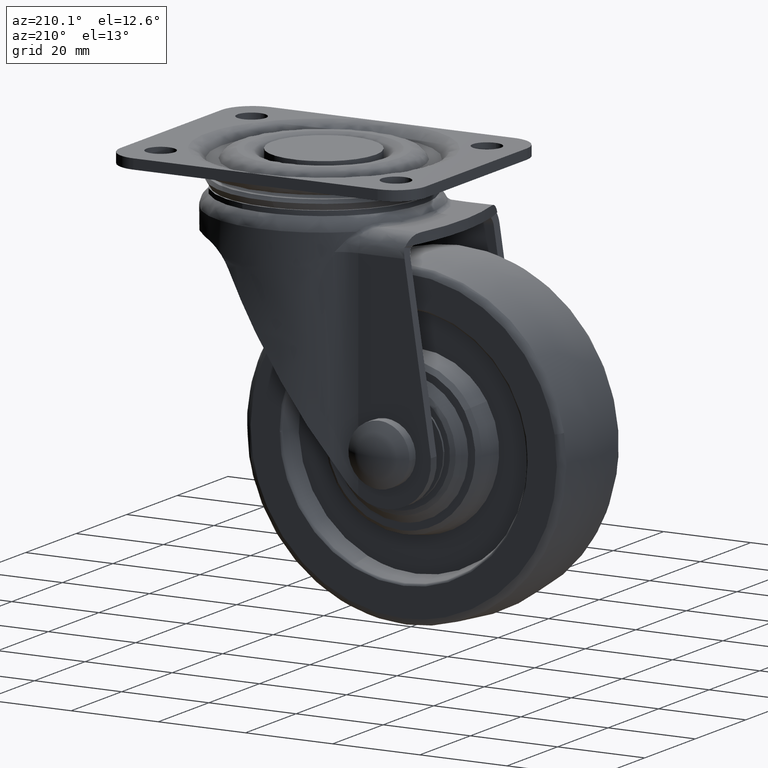
[diagram: clean part render]
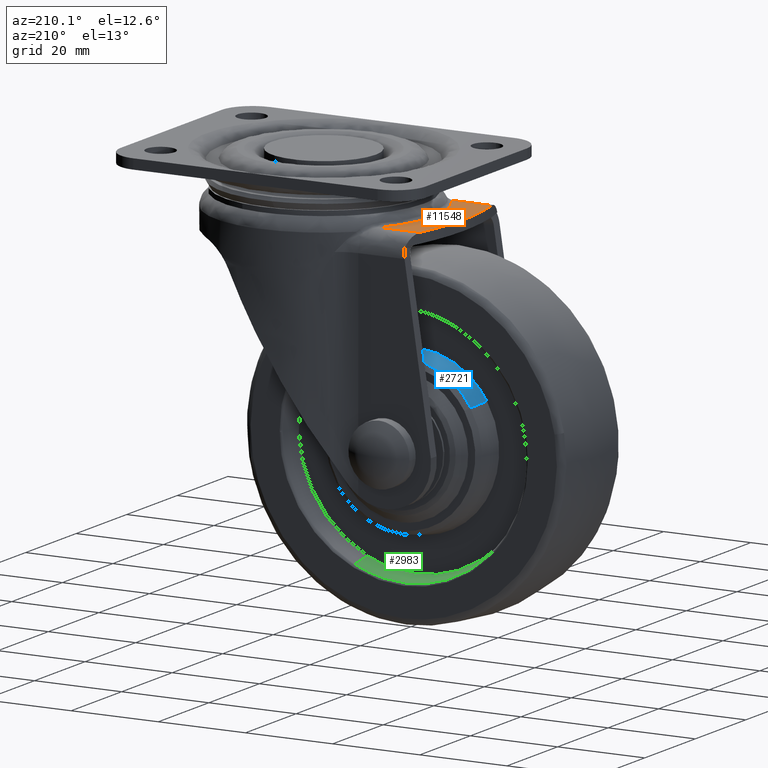
[diagram: same view with three faces highlighted in distinct colors, each labeled with its STEP entity id]
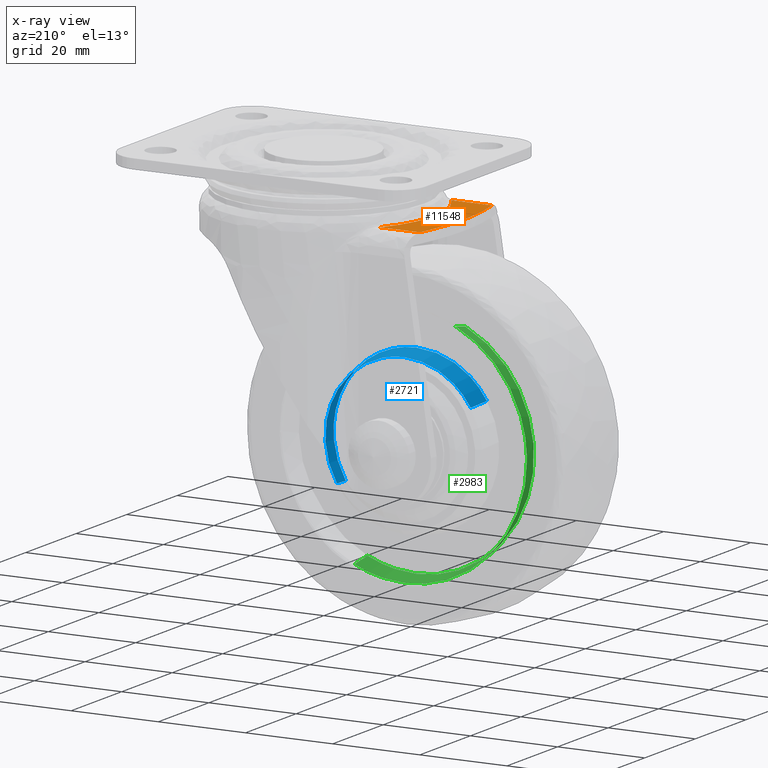
[diagram: x-ray of the same camera — body ghosted, the three highlighted faces saturated]
A machine part, auxiliary view with three faces highlighted in distinct colors.
The next image is the same camera in x-ray (body ghosted, the three faces saturated) — at least one of them is partly hidden behind the body in this view.
Their STEP definitions:

[orange] entity #11548 — the highlighted face is a freeform B-spline surface patch.
#11037=CARTESIAN_POINT('',(-21.084635228655848,14.198499999999999,-11.0));
#11038=VERTEX_POINT('',#11037);
#11039=CARTESIAN_POINT('',(-30.347037945952451,14.198499999999999,-11.0));
#11040=VERTEX_POINT('',#11039);
#11041=CARTESIAN_POINT('',(-21.084635228655848,14.198499999999999,-11.0));
#11042=CARTESIAN_POINT('',(-30.347037945952451,14.198499999999999,-11.0));
#11043=QUASI_UNIFORM_CURVE('',1,(#11041,#11042),.UNSPECIFIED.,.F.,.U.);
#11044=EDGE_CURVE('',#11038,#11040,#11043,.T.);
#11329=CARTESIAN_POINT('',(-30.347037945952451,-14.198499999999999,-11.0));
#11330=VERTEX_POINT('',#11329);
#11356=CARTESIAN_POINT('',(-30.347037945952430,14.198499999999990,-11.0));
#11357=CARTESIAN_POINT('',(-33.698383403574589,1.561251E-014,-10.999999999999996));
#11358=CARTESIAN_POINT('',(-30.347037945952430,-14.198499999999971,-11.0));
#11366=(BOUNDED_CURVE()B_SPLINE_CURVE(2,(#11356,#11357,#11358),.UNSPECIFIED.,.F.,.U.)CURVE()GEOMETRIC_REPRESENTATION_ITEM()QUASI_UNIFORM_CURVE()RATIONAL_B_SPLINE_CURVE((1.0,0.973256127308225,1.0))REPRESENTATION_ITEM(''));
#11367=EDGE_CURVE('',#11040,#11330,#11366,.T.);
#11492=CARTESIAN_POINT('',(-32.545222449172549,-15.616930094961100,-11.0));
#11493=CARTESIAN_POINT('',(-20.539412486710258,-15.616930094961100,-11.0));
#11494=CARTESIAN_POINT('',(-32.545222449172549,15.616930856628001,-11.0));
#11495=CARTESIAN_POINT('',(-20.539412486710258,15.616930856628001,-11.0));
#11496=B_SPLINE_SURFACE_WITH_KNOTS('',1,1,((#11492,#11494),(#11493,#11495)),.UNSPECIFIED.,.F.,.F.,.U.,(2,2),(2,2),(0.0,12.005809962462290),(0.0,31.233860951589101),.UNSPECIFIED.);
#11497=CARTESIAN_POINT('',(-21.084635228655699,-14.198499999999999,-11.0));
#11498=VERTEX_POINT('',#11497);
#11499=CARTESIAN_POINT('',(-30.347037945952451,-14.198499999999999,-11.0));
#11500=CARTESIAN_POINT('',(-21.084635228655699,-14.198499999999999,-11.0));
#11501=QUASI_UNIFORM_CURVE('',1,(#11499,#11500),.UNSPECIFIED.,.F.,.U.);
#11502=EDGE_CURVE('',#11330,#11498,#11501,.T.);
#11503=ORIENTED_EDGE('',*,*,#11502,.T.);
#11504=CARTESIAN_POINT('',(-21.084635228655699,-14.198499999999999,-11.0));
#11505=CARTESIAN_POINT('',(-21.438252810645690,-13.673382751285031,-11.0));
#11506=CARTESIAN_POINT('',(-21.770036131299861,-13.138410769598959,-11.0));
#11507=CARTESIAN_POINT('',(-22.391204039224402,-12.049330450324350,-11.0));
#11508=CARTESIAN_POINT('',(-22.680586110362519,-11.495220977097899,-11.0));
#11509=CARTESIAN_POINT('',(-23.485932093696729,-9.804548136307842,-11.0));
#11510=CARTESIAN_POINT('',(-23.939442487939051,-8.639796833597060,-11.0));
#11511=CARTESIAN_POINT('',(-24.399601849090072,-7.135686523729651,-11.0));
#11512=CARTESIAN_POINT('',(-24.486269743173601,-6.832443469743497,-11.0));
#11513=CARTESIAN_POINT('',(-24.608092674521021,-6.373887398101347,-11.0));
#11514=CARTESIAN_POINT('',(-24.647304255475479,-6.220529213231441,-11.0));
#11515=CARTESIAN_POINT('',(-24.722681191343089,-5.913851045889221,-11.0));
#11516=CARTESIAN_POINT('',(-24.758886364013840,-5.760383185484415,-11.0));
#11517=CARTESIAN_POINT('',(-24.932556012405090,-4.992405231562286,-11.0));
#11518=CARTESIAN_POINT('',(-25.047983404337860,-4.375981922422297,-11.0));
#11519=CARTESIAN_POINT('',(-25.325276704812929,-2.520722518566618,-11.0));
#11520=CARTESIAN_POINT('',(-25.418521519629039,-1.275928877479280,-11.0));
#11521=CARTESIAN_POINT('',(-25.420232100902570,0.603256067922237,-11.0));
#11522=CARTESIAN_POINT('',(-25.397684803703079,1.231658064139096,-11.0));
#11523=CARTESIAN_POINT('',(-25.339798100990031,2.019739278217017,-11.0));
#11524=CARTESIAN_POINT('',(-25.326720915664040,2.177593064259260,-11.0));
#11525=CARTESIAN_POINT('',(-25.297692315910879,2.492280887466202,-11.0));
#11526=CARTESIAN_POINT('',(-25.249812740730579,2.963201737956898,-11.0));
#11527=CARTESIAN_POINT('',(-25.189037599753611,3.430819255820913,-11.0));
#11528=CARTESIAN_POINT('',(-24.958185088751900,4.982302993344135,-11.0));
#11529=CARTESIAN_POINT('',(-24.683503200988849,6.200435583016189,-11.0));
#11530=CARTESIAN_POINT('',(-24.138223510914660,7.993499344248523,-11.0));
#11531=CARTESIAN_POINT('',(-23.934163870199800,8.585474954462077,-11.0));
#11532=CARTESIAN_POINT('',(-23.594013801614899,9.464713392696865,-11.0));
#11533=CARTESIAN_POINT('',(-23.474947810385949,9.756337206338595,-11.0));
#11534=CARTESIAN_POINT('',(-23.287692815047791,10.191555600649830,-11.0));
#11535=CARTESIAN_POINT('',(-23.223779225494269,10.336372549326571,-11.0));
#11536=CARTESIAN_POINT('',(-23.093329943921422,10.624623098764539,-11.0));
#11537=CARTESIAN_POINT('',(-23.026809463154560,10.768030233362801,-11.0));
#11538=CARTESIAN_POINT('',(-22.416509399410501,12.052257132436710,-11.0));
#11539=CARTESIAN_POINT('',(-21.791870392635850,13.148265502569700,-11.0));
#11540=CARTESIAN_POINT('',(-21.084635228655859,14.198499999999990,-11.0));
#11541=B_SPLINE_CURVE_WITH_KNOTS('',3,(#11504,#11505,#11506,#11507,#11508,#11509,#11510,#11511,#11512,#11513,#11514,#11515,#11516,#11517,#11518,#11519,#11520,#11521,#11522,#11523,#11524,#11525,#11526,#11527,#11528,#11529,#11530,#11531,#11532,#11533,#11534,#11535,#11536,#11537,#11538,#11539,#11540),.UNSPECIFIED.,.F.,.U.,(4,2,2,2,2,2,2,2,2,2,2,1,2,2,2,2,2,2,4),(0.0,0.062500000000000,0.125000000000000,0.250000000000000,0.281250000000000,0.296875000000000,0.312500000000000,0.375000000000000,0.500000000000000,0.562500000000000,0.578125000000000,0.593750000000000,0.625000000000000,0.750000000000000,0.812500000000000,0.843750000000000,0.859375000000000,0.875000000000000,1.0),.UNSPECIFIED.);
#11542=EDGE_CURVE('',#11498,#11038,#11541,.T.);
#11543=ORIENTED_EDGE('',*,*,#11542,.T.);
#11544=ORIENTED_EDGE('',*,*,#11044,.T.);
#11545=ORIENTED_EDGE('',*,*,#11367,.T.);
#11546=EDGE_LOOP('',(#11503,#11543,#11544,#11545));
#11547=FACE_OUTER_BOUND('',#11546,.T.);
#11548=ADVANCED_FACE('',(#11547),#11496,.T.);

[blue] entity #2721 — the highlighted face is a freeform B-spline surface patch.
#2319=CARTESIAN_POINT('',(-40.352586484621199,11.470314483545611,-46.091880850573503));
#2320=VERTEX_POINT('',#2319);
#2334=CARTESIAN_POINT('',(-25.0,11.470310406056999,-37.494017081210821));
#2335=VERTEX_POINT('',#2334);
#2336=CARTESIAN_POINT('',(-25.0,11.470310406056999,-37.494017081210821));
#2337=CARTESIAN_POINT('',(-35.083811050393876,11.470312444697131,-37.494017294216306));
#2338=CARTESIAN_POINT('',(-40.352586484621213,11.470314483545614,-46.091880850573510));
#2346=(BOUNDED_CURVE()B_SPLINE_CURVE(2,(#2336,#2337,#2338),.UNSPECIFIED.,.F.,.U.)B_SPLINE_CURVE_WITH_KNOTS((3,3),(0.500000000000000,0.660717647000216),.UNSPECIFIED.)CURVE()GEOMETRIC_REPRESENTATION_ITEM()RATIONAL_B_SPLINE_CURVE((1.0,0.811707564199930,0.865510466237672))REPRESENTATION_ITEM(''));
#2347=EDGE_CURVE('',#2335,#2320,#2346,.T.);
#2349=CARTESIAN_POINT('',(-9.919522105970664,11.470310407309601,-45.661612313655439));
#2350=VERTEX_POINT('',#2349);
#2351=CARTESIAN_POINT('',(-9.919522105970666,11.470310407309602,-45.661612313655439));
#2352=CARTESIAN_POINT('',(-15.247973988057526,11.470310406683300,-37.494017081279274));
#2353=CARTESIAN_POINT('',(-25.0,11.470310406056999,-37.494017081210821));
#2361=(BOUNDED_CURVE()B_SPLINE_CURVE(2,(#2351,#2352,#2353),.UNSPECIFIED.,.F.,.U.)B_SPLINE_CURVE_WITH_KNOTS((3,3),(0.343601467029336,0.500000000000000),.UNSPECIFIED.)CURVE()GEOMETRIC_REPRESENTATION_ITEM()RATIONAL_B_SPLINE_CURVE((0.862793519059282,0.816767721042082,1.0))REPRESENTATION_ITEM(''));
#2362=EDGE_CURVE('',#2350,#2335,#2361,.T.);
#2406=CARTESIAN_POINT('',(-9.647413515378805,11.470314483545611,-64.908029149425133));
#2407=VERTEX_POINT('',#2406);
#2408=CARTESIAN_POINT('',(-9.647413515378805,11.470314483545611,-64.908029149425133));
#2409=CARTESIAN_POINT('',(-9.205262154876811,11.470314332111480,-64.186580073767530));
#2410=CARTESIAN_POINT('',(-8.447423469709118,11.470314025589751,-62.728227672698118));
#2411=CARTESIAN_POINT('',(-7.574662061439415,11.470313510287131,-60.282258792974680));
#2412=CARTESIAN_POINT('',(-7.012948994807221,11.470312917147790,-57.473126855815380));
#2413=CARTESIAN_POINT('',(-6.937087586658684,11.470312287793501,-54.499880914862722));
#2414=CARTESIAN_POINT('',(-7.342166809726479,11.470311686266029,-51.664892445537717));
#2415=CARTESIAN_POINT('',(-8.213428087519993,11.470311059202890,-48.715943986168739));
#2416=CARTESIAN_POINT('',(-9.196883067464189,11.470310643933290,-46.768800089673093));
#2417=CARTESIAN_POINT('',(-9.919522105970664,11.470310407309601,-45.661612313655439));
#2418=B_SPLINE_CURVE_WITH_KNOTS('',3,(#2408,#2409,#2410,#2411,#2412,#2413,#2414,#2415,#2416,#2417),.UNSPECIFIED.,.F.,.U.,(4,1,1,1,1,1,1,4),(-4.555769E-009,2.538482212123661,4.918311501858906,7.774068936164163,11.105726249219140,13.802908771793380,16.341358444186628,20.307731463630109),.UNSPECIFIED.);
#2419=EDGE_CURVE('',#2407,#2350,#2418,.T.);
#2654=CARTESIAN_POINT('',(-9.668603565201090,11.594568167492341,-64.895046818529835));
#2655=CARTESIAN_POINT('',(-0.273511746670579,11.594568167492344,-49.563650383730923));
#2656=CARTESIAN_POINT('',(-15.604908181469490,11.594568167492341,-40.168558565200406));
#2657=CARTESIAN_POINT('',(-30.936304616268398,11.594568167492344,-30.773466746669882));
#2658=CARTESIAN_POINT('',(-40.331396434798911,11.594568167492341,-46.104863181468801));
#2659=CARTESIAN_POINT('',(-8.778117710074032,6.372635795812690,-65.440737252379151));
#2660=CARTESIAN_POINT('',(1.162664542305805,6.372635795812690,-49.218854962453179));
#2661=CARTESIAN_POINT('',(-15.059217747620171,6.372635795812690,-39.278072710073353));
#2662=CARTESIAN_POINT('',(-31.281100037546135,6.372635795812690,-29.337290457693516));
#2663=CARTESIAN_POINT('',(-41.221882289925972,6.372635795812690,-45.559172747619492));
#2671=(BOUNDED_SURFACE()B_SPLINE_SURFACE(2,1,((#2654,#2659),(#2655,#2660),(#2656,#2661),(#2657,#2662),(#2658,#2663)),.UNSPECIFIED.,.F.,.F.,.U.)B_SPLINE_SURFACE_WITH_KNOTS((3,2,3),(2,2),(0.0,31.522435524943418,63.044871049886829),(0.0,5.325347012371301),.UNSPECIFIED.)GEOMETRIC_REPRESENTATION_ITEM()RATIONAL_B_SPLINE_SURFACE(((1.0,1.0),(0.707106781186548,0.707106781186548),(1.0,1.0),(0.707106781186548,0.707106781186548),(1.0,1.0)))REPRESENTATION_ITEM('')SURFACE());
#2672=ORIENTED_EDGE('',*,*,#2419,.T.);
#2673=ORIENTED_EDGE('',*,*,#2362,.T.);
#2674=ORIENTED_EDGE('',*,*,#2347,.T.);
#2675=CARTESIAN_POINT('',(-41.200163122727247,6.499999999999800,-45.572482270395398));
#2676=VERTEX_POINT('',#2675);
#2677=CARTESIAN_POINT('',(-40.352586484621199,11.470314483545611,-46.091880850573503));
#2678=CARTESIAN_POINT('',(-41.200163122727247,6.499999999999800,-45.572482270395398));
#2679=QUASI_UNIFORM_CURVE('',1,(#2677,#2678),.UNSPECIFIED.,.F.,.U.);
#2680=EDGE_CURVE('',#2320,#2676,#2679,.T.);
#2681=ORIENTED_EDGE('',*,*,#2680,.T.);
#2682=CARTESIAN_POINT('',(-25.0,6.500000000000000,-36.499954999999332));
#2683=VERTEX_POINT('',#2682);
#2684=CARTESIAN_POINT('',(-25.0,6.500000000000000,-36.499954999999332));
#2685=CARTESIAN_POINT('',(-35.640511261006779,6.500000000000001,-36.499954999999332));
#2686=CARTESIAN_POINT('',(-41.200163122727211,6.500000000000001,-45.572482270395412));
#2694=(BOUNDED_CURVE()B_SPLINE_CURVE(2,(#2684,#2685,#2686),.UNSPECIFIED.,.F.,.U.)B_SPLINE_CURVE_WITH_KNOTS((3,3),(0.500000000000000,0.660717625638164),.UNSPECIFIED.)CURVE()GEOMETRIC_REPRESENTATION_ITEM()RATIONAL_B_SPLINE_CURVE((1.0,0.811707589227131,0.865510451935073))REPRESENTATION_ITEM(''));
#2695=EDGE_CURVE('',#2683,#2676,#2694,.T.);
#2696=ORIENTED_EDGE('',*,*,#2695,.F.);
#2697=CARTESIAN_POINT('',(-8.799836877272757,6.499999999999799,-65.427427729603252));
#2698=VERTEX_POINT('',#2697);
#2699=CARTESIAN_POINT('',(-8.799836877272792,6.499999999999998,-65.427427729603224));
#2700=CARTESIAN_POINT('',(-6.000000000000001,6.499999999999999,-60.858509197740780));
#2701=CARTESIAN_POINT('',(-6.0,6.500000000000000,-55.499954999999318));
#2702=CARTESIAN_POINT('',(-6.0,6.500000000000001,-36.499954999999332));
#2703=CARTESIAN_POINT('',(-25.0,6.500000000000000,-36.499954999999332));
#2711=(BOUNDED_CURVE()B_SPLINE_CURVE(2,(#2699,#2700,#2701,#2702,#2703),.UNSPECIFIED.,.F.,.U.)B_SPLINE_CURVE_WITH_KNOTS((3,2,3),(0.160717625638164,0.250000000000000,0.500000000000000),.UNSPECIFIED.)CURVE()GEOMETRIC_REPRESENTATION_ITEM()RATIONAL_B_SPLINE_CURVE((0.865510451935073,0.895399191959417,1.0,0.707106781186548,1.0))REPRESENTATION_ITEM(''));
#2712=EDGE_CURVE('',#2698,#2683,#2711,.T.);
#2713=ORIENTED_EDGE('',*,*,#2712,.F.);
#2714=CARTESIAN_POINT('',(-9.647413515378805,11.470314483545611,-64.908029149425133));
#2715=CARTESIAN_POINT('',(-8.799836877272757,6.499999999999799,-65.427427729603252));
#2716=QUASI_UNIFORM_CURVE('',1,(#2714,#2715),.UNSPECIFIED.,.F.,.U.);
#2717=EDGE_CURVE('',#2407,#2698,#2716,.T.);
#2718=ORIENTED_EDGE('',*,*,#2717,.F.);
#2719=EDGE_LOOP('',(#2672,#2673,#2674,#2681,#2696,#2713,#2718));
#2720=FACE_OUTER_BOUND('',#2719,.T.);
#2721=ADVANCED_FACE('',(#2720),#2671,.T.);

[green] entity #2983 — the highlighted face is a freeform B-spline surface patch.
#2783=CARTESIAN_POINT('',(-36.188140686831218,6.500000000004167,-30.927093791509630));
#2784=VERTEX_POINT('',#2783);
#2785=CARTESIAN_POINT('',(-25.0,6.500000000000006,-82.499954999999247));
#2786=VERTEX_POINT('',#2785);
#2787=CARTESIAN_POINT('',(-36.188140686831218,6.500000000004167,-30.927093791509630));
#2788=CARTESIAN_POINT('',(-37.968701665704891,6.500000000004158,-31.737386316400990));
#2789=CARTESIAN_POINT('',(-40.815676745656233,6.500000000004001,-33.429014635244769));
#2790=CARTESIAN_POINT('',(-44.452370049600987,6.500000000003985,-36.611118392267102));
#2791=CARTESIAN_POINT('',(-47.052362265243261,6.500000000003415,-39.742674098263556));
#2792=CARTESIAN_POINT('',(-49.000394793403153,6.500000000003876,-42.979285387725810));
#2793=CARTESIAN_POINT('',(-50.472417414441033,6.500000000002993,-46.300021871308687));
#2794=CARTESIAN_POINT('',(-51.418094987268972,6.500000000003001,-49.563405162281683));
#2795=CARTESIAN_POINT('',(-51.939487387690221,6.500000000002787,-52.963818964413313));
#2796=CARTESIAN_POINT('',(-52.076482858896853,6.500000000002443,-56.546301823399908));
#2797=CARTESIAN_POINT('',(-51.675390931702132,6.500000000002143,-60.259673516700602));
#2798=CARTESIAN_POINT('',(-50.776532025468462,6.500000000001912,-63.730308521791741));
#2799=CARTESIAN_POINT('',(-49.609620136027452,6.500000000001598,-66.762587414042855));
#2800=CARTESIAN_POINT('',(-48.245480076289752,6.500000000001443,-69.340837486457445));
#2801=CARTESIAN_POINT('',(-46.611829145206173,6.500000000001116,-71.752768662148497));
#2802=CARTESIAN_POINT('',(-44.998426227776498,6.500000000001288,-73.704611178391872));
#2803=CARTESIAN_POINT('',(-42.999015506434262,6.500000000000766,-75.690328776087554));
#2804=CARTESIAN_POINT('',(-40.803862512676993,6.500000000000677,-77.460322719848776));
#2805=CARTESIAN_POINT('',(-37.781656745485073,6.500000000000449,-79.385924910929674));
#2806=CARTESIAN_POINT('',(-34.686080062557643,6.500000000000333,-80.793492652079294));
#2807=CARTESIAN_POINT('',(-31.163190127530370,6.500000000000065,-81.850755896682557));
#2808=CARTESIAN_POINT('',(-28.149037838990299,6.500000000000342,-82.383518661161872));
#2809=CARTESIAN_POINT('',(-25.954238918671869,6.499999999999598,-82.499965653500041));
#2810=CARTESIAN_POINT('',(-25.0,6.500000000000006,-82.499954999999247));
#2811=B_SPLINE_CURVE_WITH_KNOTS('',3,(#2787,#2788,#2789,#2790,#2791,#2792,#2793,#2794,#2795,#2796,#2797,#2798,#2799,#2800,#2801,#2802,#2803,#2804,#2805,#2806,#2807,#2808,#2809,#2810),.UNSPECIFIED.,.F.,.U.,(4,1,1,1,1,1,1,1,1,1,1,1,1,1,1,1,1,1,1,1,1,4),(0.000000098331611,5.868696440743165,9.876591397518617,14.457053190454531,18.035518820762871,21.184611354128041,25.335651447604040,28.198437186299689,31.490568701517940,36.070967233960083,39.363183244702597,42.225998342040043,45.804470400265913,48.094695657647407,50.957475275743008,53.390844429285892,56.539905863168592,59.402695737786061,64.126268150473109,66.702769064362059,70.424436718581561,73.287159245007388),.UNSPECIFIED.);
#2812=EDGE_CURVE('',#2784,#2786,#2811,.T.);
#2829=CARTESIAN_POINT('',(-13.811859313168769,6.500000000004169,-80.072816208488987));
#2830=VERTEX_POINT('',#2829);
#2859=CARTESIAN_POINT('',(-25.0,6.500000000000006,-82.499954999999247));
#2860=CARTESIAN_POINT('',(-19.142659696089957,6.500000000002089,-82.499954999999488));
#2861=CARTESIAN_POINT('',(-13.811859313168771,6.500000000004169,-80.072816208488987));
#2869=(BOUNDED_CURVE()B_SPLINE_CURVE(2,(#2859,#2860,#2861),.UNSPECIFIED.,.F.,.U.)B_SPLINE_CURVE_WITH_KNOTS((3,3),(0.0,0.070375489958150),.UNSPECIFIED.)CURVE()GEOMETRIC_REPRESENTATION_ITEM()RATIONAL_B_SPLINE_CURVE((1.0,0.917549984882334,0.881519651452370))REPRESENTATION_ITEM(''));
#2870=EDGE_CURVE('',#2786,#2830,#2869,.T.);
#2881=CARTESIAN_POINT('',(-36.177113823126859,6.271357924155052,-30.951312435035003));
#2882=CARTESIAN_POINT('',(-60.725756388091170,6.271357924155053,-42.128426258161866));
#2883=CARTESIAN_POINT('',(-49.548642564964311,6.271357924155052,-66.677068823126177));
#2884=CARTESIAN_POINT('',(-38.371528741837459,6.271357924155053,-91.225711388090502));
#2885=CARTESIAN_POINT('',(-13.822886176873144,6.271357924155052,-80.048597564963615));
#2886=CARTESIAN_POINT('',(-36.294081696134100,8.804312163483029,-30.694412259240281));
#2887=CARTESIAN_POINT('',(-61.099624436893123,8.804312163483029,-41.988493955374395));
#2888=CARTESIAN_POINT('',(-49.805542740759030,8.804312163483029,-66.794036696133418));
#2889=CARTESIAN_POINT('',(-38.511461044624937,8.804312163483029,-91.599579436892427));
#2890=CARTESIAN_POINT('',(-13.705918303865900,8.804312163483029,-80.305497740758327));
#2891=CARTESIAN_POINT('',(-36.632657918455578,11.218421449578695,-29.950786776464202));
#2892=CARTESIAN_POINT('',(-62.181826141990705,11.218421449578692,-41.583444694919791));
#2893=CARTESIAN_POINT('',(-50.549168223535119,11.218421449578695,-67.132612918454910));
#2894=CARTESIAN_POINT('',(-38.916510305079541,11.218421449578692,-92.681781141990029));
#2895=CARTESIAN_POINT('',(-13.367342081544418,11.218421449578695,-81.049123223534423));
#2903=(BOUNDED_SURFACE()B_SPLINE_SURFACE(2,2,((#2881,#2886,#2891),(#2882,#2887,#2892),(#2883,#2888,#2893),(#2884,#2889,#2894),(#2885,#2890,#2895)),.UNSPECIFIED.,.F.,.F.,.U.)B_SPLINE_SURFACE_WITH_KNOTS((3,2,3),(3,3),(0.0,46.512438447468973,93.024876894937947),(0.0,5.082462354357192),.UNSPECIFIED.)GEOMETRIC_REPRESENTATION_ITEM()RATIONAL_B_SPLINE_SURFACE(((0.960212581232874,0.954586570016093,0.960084049808397),(0.678972827570404,0.674994636887987,0.678881942128560),(0.960212581232874,0.954586570016093,0.960084049808397),(0.678972827570404,0.674994636887987,0.678881942128560),(0.960212581232874,0.954586570016093,0.960084049808397)))REPRESENTATION_ITEM('')SURFACE());
#2904=CARTESIAN_POINT('',(-36.602516267881640,11.000000000646301,-30.016987820741448));
#2905=VERTEX_POINT('',#2904);
#2906=CARTESIAN_POINT('',(-52.997789237706257,11.000000002679810,-55.148105883218904));
#2907=VERTEX_POINT('',#2906);
#2908=CARTESIAN_POINT('',(-36.602516267881633,11.000000000646301,-30.016987820741441));
#2909=CARTESIAN_POINT('',(-52.774498998394918,11.000000001800526,-37.380168544405663));
#2910=CARTESIAN_POINT('',(-52.997789237706264,11.000000002679807,-55.148105883218904));
#2918=(BOUNDED_CURVE()B_SPLINE_CURVE(2,(#2908,#2909,#2910),.UNSPECIFIED.,.F.,.U.)B_SPLINE_CURVE_WITH_KNOTS((3,3),(0.570375489958245,0.747784295921436),.UNSPECIFIED.)CURVE()GEOMETRIC_REPRESENTATION_ITEM()RATIONAL_B_SPLINE_CURVE((0.881519651452273,0.790691176424166,0.994854295643339))REPRESENTATION_ITEM(''));
#2919=EDGE_CURVE('',#2905,#2907,#2918,.T.);
#2920=ORIENTED_EDGE('',*,*,#2919,.F.);
#2921=CARTESIAN_POINT('',(-36.188140686831218,6.500000000004167,-30.927093791509634));
#2922=CARTESIAN_POINT('',(-36.303738359836359,8.799118144308142,-30.673203028597602));
#2923=CARTESIAN_POINT('',(-36.602516267881640,11.000000000646303,-30.016987820741445));
#2931=(BOUNDED_CURVE()B_SPLINE_CURVE(2,(#2921,#2922,#2923),.UNSPECIFIED.,.F.,.U.)B_SPLINE_CURVE_WITH_KNOTS((3,3),(-1.235152498272996,-0.770749764587953),.UNSPECIFIED.)CURVE()GEOMETRIC_REPRESENTATION_ITEM()RATIONAL_B_SPLINE_CURVE((0.959724531624514,0.955068782924547,0.959607673616015))REPRESENTATION_ITEM(''));
#2932=EDGE_CURVE('',#2784,#2905,#2931,.T.);
#2933=ORIENTED_EDGE('',*,*,#2932,.F.);
#2934=ORIENTED_EDGE('',*,*,#2812,.T.);
#2935=ORIENTED_EDGE('',*,*,#2870,.T.);
#2936=CARTESIAN_POINT('',(-13.397483732118360,11.000000000646310,-80.982922179257173));
#2937=VERTEX_POINT('',#2936);
#2938=CARTESIAN_POINT('',(-13.811859313168775,6.500000000004169,-80.072816208488987));
#2939=CARTESIAN_POINT('',(-13.696261640163643,8.799118144308148,-80.326706971401038));
#2940=CARTESIAN_POINT('',(-13.397483732118356,11.000000000646313,-80.982922179257173));
#2948=(BOUNDED_CURVE()B_SPLINE_CURVE(2,(#2938,#2939,#2940),.UNSPECIFIED.,.F.,.U.)B_SPLINE_CURVE_WITH_KNOTS((3,3),(-1.235152498272996,-0.770749764587953),.UNSPECIFIED.)CURVE()GEOMETRIC_REPRESENTATION_ITEM()RATIONAL_B_SPLINE_CURVE((0.959724531624514,0.955068782924547,0.959607673616015))REPRESENTATION_ITEM(''));
#2949=EDGE_CURVE('',#2830,#2937,#2948,.T.);
#2950=ORIENTED_EDGE('',*,*,#2949,.T.);
#2951=CARTESIAN_POINT('',(-25.0,11.000000000000030,-83.499954999999233));
#2952=VERTEX_POINT('',#2951);
#2953=CARTESIAN_POINT('',(-25.0,11.000000000000030,-83.499954999999233));
#2954=CARTESIAN_POINT('',(-18.925721166286021,11.000000000276174,-83.499955000044707));
#2955=CARTESIAN_POINT('',(-13.397483732118364,11.000000000646308,-80.982922179257173));
#2963=(BOUNDED_CURVE()B_SPLINE_CURVE(2,(#2953,#2954,#2955),.UNSPECIFIED.,.F.,.U.)B_SPLINE_CURVE_WITH_KNOTS((3,3),(0.0,0.070375489958245),.UNSPECIFIED.)CURVE()GEOMETRIC_REPRESENTATION_ITEM()RATIONAL_B_SPLINE_CURVE((1.0,0.917549984882223,0.881519651452273))REPRESENTATION_ITEM(''));
#2964=EDGE_CURVE('',#2952,#2937,#2963,.T.);
#2965=ORIENTED_EDGE('',*,*,#2964,.F.);
#2966=CARTESIAN_POINT('',(-52.997789237706264,11.000000002679807,-55.148105883218904));
#2967=CARTESIAN_POINT('',(-52.999999999999993,11.000000002671490,-55.324023496203132));
#2968=CARTESIAN_POINT('',(-53.0,11.000000002663070,-55.499954999999332));
#2969=CARTESIAN_POINT('',(-53.000000000000014,11.000000001323183,-83.499954999999275));
#2970=CARTESIAN_POINT('',(-25.0,11.000000000000030,-83.499954999999233));
#2978=(BOUNDED_CURVE()B_SPLINE_CURVE(2,(#2966,#2967,#2968,#2969,#2970),.UNSPECIFIED.,.F.,.U.)B_SPLINE_CURVE_WITH_KNOTS((3,2,3),(0.747784295921436,0.750000000000000,1.0),.UNSPECIFIED.)CURVE()GEOMETRIC_REPRESENTATION_ITEM()RATIONAL_B_SPLINE_CURVE((0.994854295643339,0.997404141201965,1.0,0.707106781186547,1.0))REPRESENTATION_ITEM(''));
#2979=EDGE_CURVE('',#2907,#2952,#2978,.T.);
#2980=ORIENTED_EDGE('',*,*,#2979,.F.);
#2981=EDGE_LOOP('',(#2920,#2933,#2934,#2935,#2950,#2965,#2980));
#2982=FACE_OUTER_BOUND('',#2981,.T.);
#2983=ADVANCED_FACE('',(#2982),#2903,.T.);